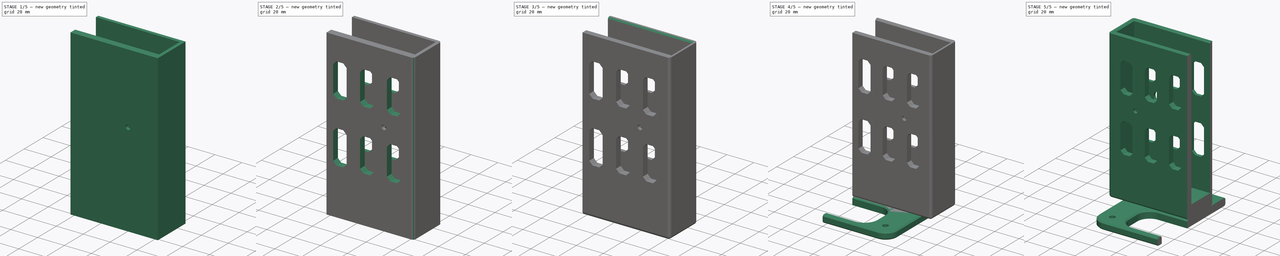
[diagram: build sequence overview — one tinted view per stage of 5, left to right]
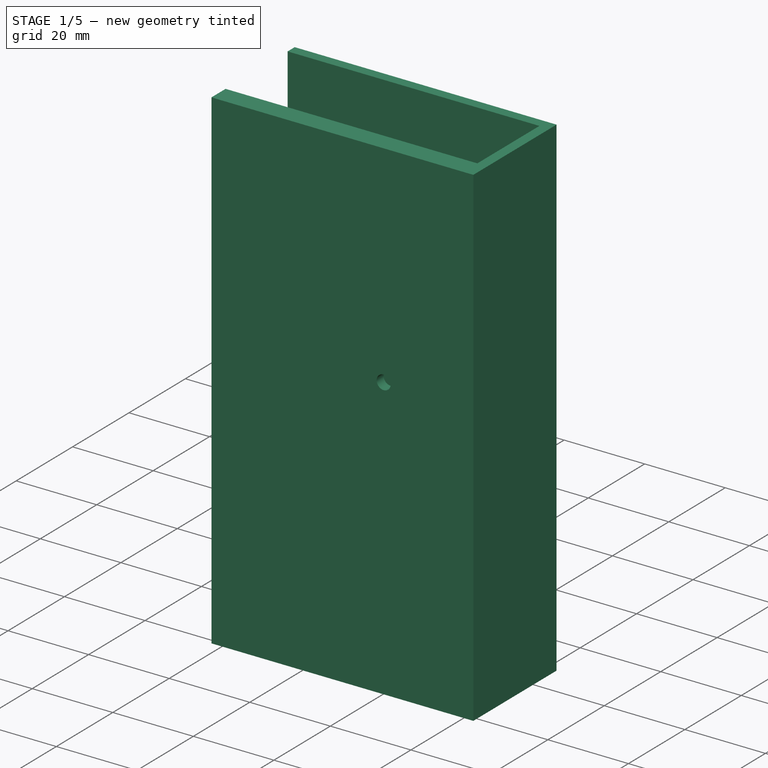
[diagram: stage 1 of 5 — iso view after this stage's code; geometry added in this stage tinted green]
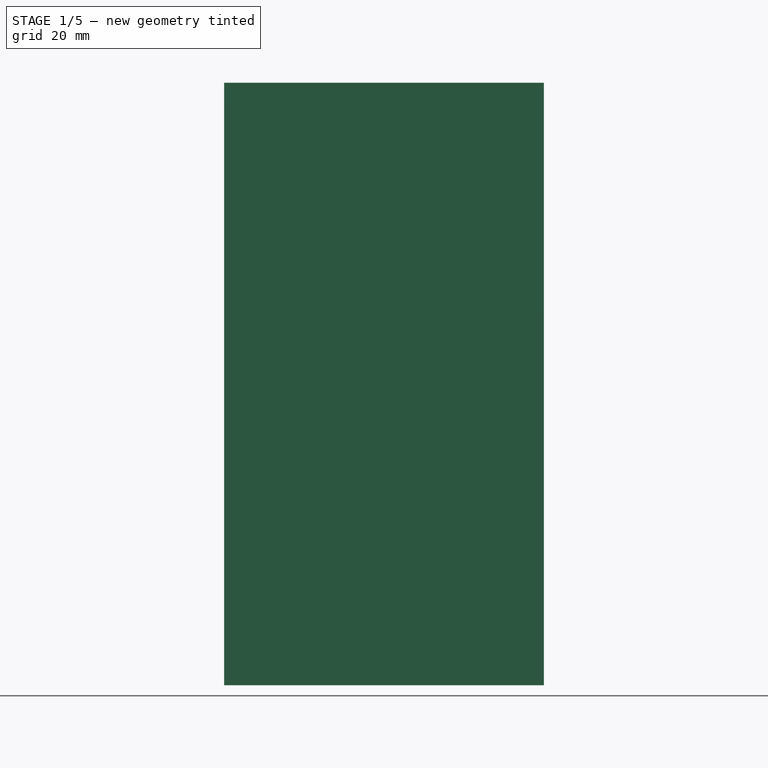
[diagram: stage 1 of 5 — front view after this stage's code; geometry added in this stage tinted green]
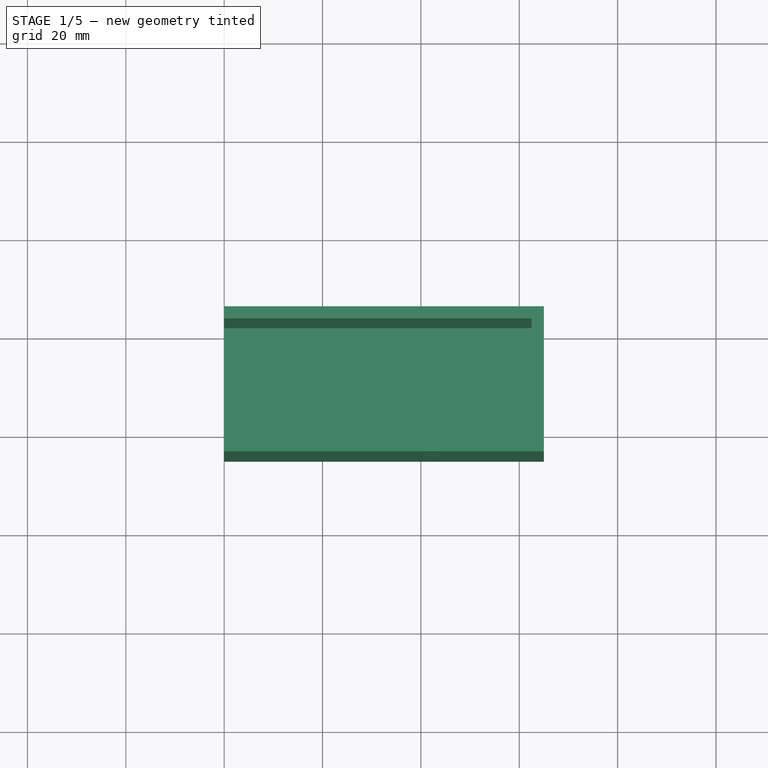
[diagram: stage 1 of 5 — top view after this stage's code; geometry added in this stage tinted green]
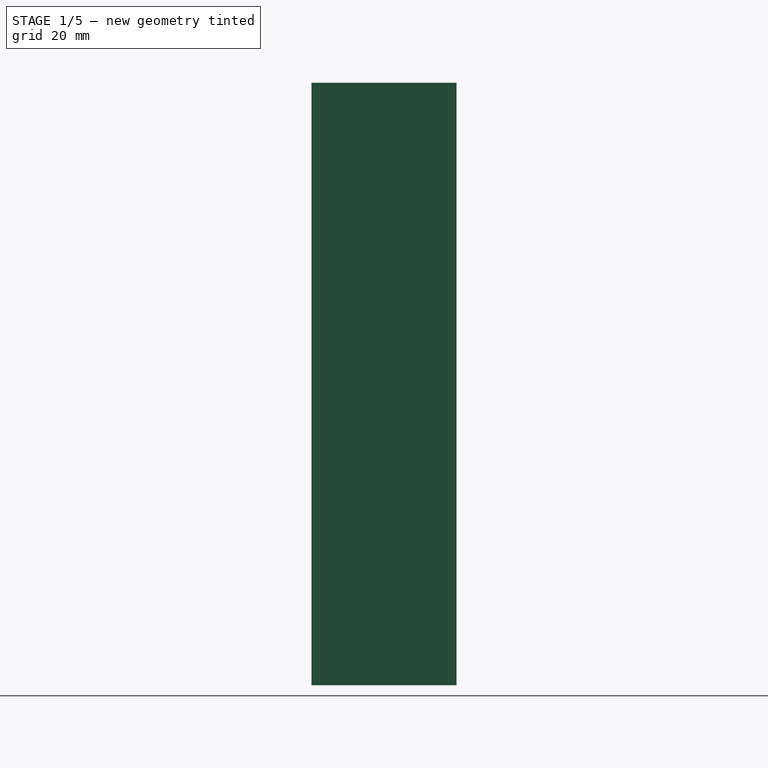
[diagram: stage 1 of 5 — right view after this stage's code; geometry added in this stage tinted green]
FCSTD DOCUMENT  (FreeCAD 0.21R33694 (Git))
Label: NUC_Mount
License: All rights reserved
LicenseURL: http://en.wikipedia.org/wiki/All_rights_reserved
objects: Sketcher::SketchObject×9, PartDesign::Pocket×8, PartDesign::Fillet×3, PartDesign::Pad×2, PartDesign::Chamfer×2, PartDesign::Body×2, PartDesign::FeatureBase×2, Part::Mirroring×2, App::Part×2, PartDesign::LinearPattern×1
note: 46 computed .brp shape members not serialized (recipe doc carries the construction recipe); baked Part::Feature solids carry a one-line shape summary decoded from their .brp

FEATURE [Sketcher::SketchObject] Sketch002
  FullyConstrained = true
  MapMode = 5
  Support = -> [XY_Plane002]
  sketch-geometry (13):
    g0: LineSegment StartX=0 StartY=0 StartZ=0 EndX=62.5 EndY=0 EndZ=0
    g1: LineSegment StartX=62.5 StartY=0 StartZ=0 EndX=62.5 EndY=22 EndZ=0
    g2: LineSegment StartX=62.5 StartY=22 StartZ=0 EndX=0 EndY=22 EndZ=0
    g3: LineSegment StartX=0 StartY=24.5 StartZ=0 EndX=65 EndY=24.5 EndZ=0
    g4: LineSegment StartX=65 StartY=24.5 StartZ=0 EndX=65 EndY=-5 EndZ=0
    g5: LineSegment StartX=62.5 StartY=22 StartZ=0 EndX=62.5 EndY=24.5 EndZ=0
    g6: LineSegment StartX=62.5 StartY=22 StartZ=0 EndX=65 EndY=22 EndZ=0
    g7: LineSegment StartX=62.5 StartY=0 StartZ=0 EndX=62.5 EndY=-5 EndZ=0
    g8: LineSegment StartX=62.5 StartY=0 StartZ=0 EndX=65 EndY=0 EndZ=0
    g9: LineSegment StartX=65 StartY=-5 StartZ=0 EndX=0 EndY=-5 EndZ=0
    g10: LineSegment StartX=0 StartY=24.5 StartZ=0 EndX=0 EndY=22 EndZ=0
    g11: LineSegment StartX=0 StartY=22 StartZ=0 EndX=0 EndY=0 EndZ=0
    g12: LineSegment StartX=0 StartY=0 StartZ=0 EndX=0 EndY=-5 EndZ=0
  constraints (37):
    c: Horizontal(g0)
    c: Coincident(g1,g0)
    c: Vertical(g1)
    c: Coincident(g2,g1)
    c: PointOnObject(g2,g-2)
    c: Horizontal(g2)
    c: PointOnObject(g3,g-2)
    c: Horizontal(g3)
    c: Coincident(g4,g3)
    c: Vertical(g4)
    c: Coincident(g5,g1)
    c: PointOnObject(g5,g3)
    c: Vertical(g5)
    c: Coincident(g6,g1)
    c: PointOnObject(g6,g4)
    c: Horizontal(g6)
    c: Coincident(g7,g0)
    c: Coincident(g8,g0)
    c: PointOnObject(g8,g4)
    c: Horizontal(g8)
    c: Vertical(g7)
    c: Distance(g5) = 2.5
    c: Distance(g6) = 2.5
    c: Distance(g1) = 22
    c: Distance(g2) = 62.5
    c: Coincident(g9,g4)
    c: Horizontal(g9)
    c: PointOnObject(g7,g9)
    c: PointOnObject(g9,g-2)
    c: Distance(g7) = 5
    c: Coincident(g0,g-1)
    c: Coincident(g10,g3)
    c: Coincident(g10,g2)
    c: Coincident(g11,g10)
    c: Coincident(g11,g-1)
    c: Coincident(g12,g11)
    c: Coincident(g12,g9)
FEATURE [PartDesign::Pad] Pad001
  Direction = (1,1,1)
  Length = 122.5
  Length2 = 100
  Profile = -> Sketch002
  Type = 0
FEATURE [Sketcher::SketchObject] Sketch003
  FullyConstrained = true
  MapMode = 5
  Placement = pos=(0,0,122.5) rot=(0,0,1;0rad)
  Support = -> [Pad001]
  sketch-geometry (4):
    g0: LineSegment StartX=0 StartY=0 StartZ=0 EndX=62.5 EndY=0 EndZ=0
    g1: LineSegment StartX=62.5 StartY=0 StartZ=0 EndX=62.5 EndY=22 EndZ=0
    g2: LineSegment StartX=62.5 StartY=22 StartZ=0 EndX=0 EndY=22 EndZ=0
    g3: LineSegment StartX=0 StartY=22 StartZ=0 EndX=0 EndY=0 EndZ=0
  constraints (11):
    c: Coincident(g0,g1)
    c: Coincident(g1,g2)
    c: Coincident(g2,g3)
    c: Coincident(g3,g0)
    c: Horizontal(g0)
    c: Horizontal(g2)
    c: Vertical(g1)
    c: Vertical(g3)
    c: Coincident(g0,g-1)
    c: Distance(g1) = 22
    c: Distance(g2) = 62.5
FEATURE [PartDesign::Pocket] Pocket001
  BaseFeature = -> Pad001
  Direction = (1,1,1)
  Length = 112.5
  Length2 = 100
  Profile = -> Sketch003
  Type = 0
FEATURE [Sketcher::SketchObject] Sketch004
  FullyConstrained = true
  MapMode = 5
  Placement = pos=(0,-5,0) rot=(1,0,0;1.5708rad)
  Support = -> [Pocket001]
  sketch-geometry (3):
    g0: LineSegment StartX=0 StartY=0 StartZ=0 EndX=0 EndY=70 EndZ=0
    g1: LineSegment StartX=0 StartY=70 StartZ=0 EndX=42.75 EndY=70 EndZ=0
    g2: Circle CenterX=42.75 CenterY=70 CenterZ=0 NormalX=0 NormalY=0 NormalZ=1 AngleXU=0 Radius=1.75
  constraints (8):
    c: Coincident(g0,g-1)
    c: PointOnObject(g0,g-2)
    c: Coincident(g1,g0)
    c: Horizontal(g1)
    c: Coincident(g2,g1)
    c: Distance(g0) = 70
    c: Distance(g1) = 42.75
    c: Radius(g2) = 1.75
FEATURE [Sketcher::SketchObject] Sketch005
  FullyConstrained = true
  MapMode = 5
  Placement = pos=(0,0,0) rot=(0,0.707107,0.707107;3.14159rad)
  Support = -> [Pocket001]
  sketch-geometry (3):
    g0: LineSegment StartX=0 StartY=0 StartZ=0 EndX=0 EndY=70 EndZ=0
    g1: LineSegment StartX=0 StartY=70 StartZ=0 EndX=-42.75 EndY=70 EndZ=0
    g2: Circle CenterX=-42.75 CenterY=70 CenterZ=0 NormalX=0 NormalY=0 NormalZ=1 AngleXU=0 Radius=4
  constraints (8):
    c: Coincident(g0,g-1)
    c: Vertical(g0)
    c: Coincident(g1,g0)
    c: Horizontal(g1)
    c: Coincident(g2,g1)
    c: Distance(g1) = 42.75
    c: Distance(g0) = 70
    c: Radius(g2) = 4
FEATURE [PartDesign::Pocket] Pocket002
  BaseFeature = -> Pocket001
  Direction = (1,1,1)
  Length = 5
  Length2 = 100
  Profile = -> Sketch004
  Type = 2
FEATURE [PartDesign::Pocket] Pocket003
  BaseFeature = -> Pocket002
  Direction = (1,1,1)
  Length = 2.5
  Length2 = 100
  Profile = -> Sketch005
  Type = 0
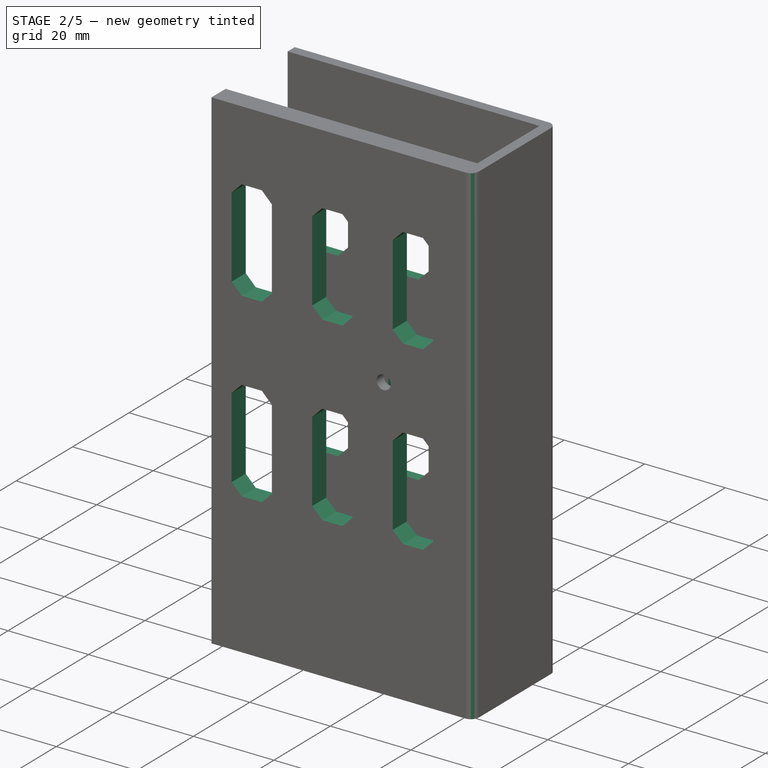
[diagram: stage 2 of 5 — iso view after this stage's code; geometry added in this stage tinted green]
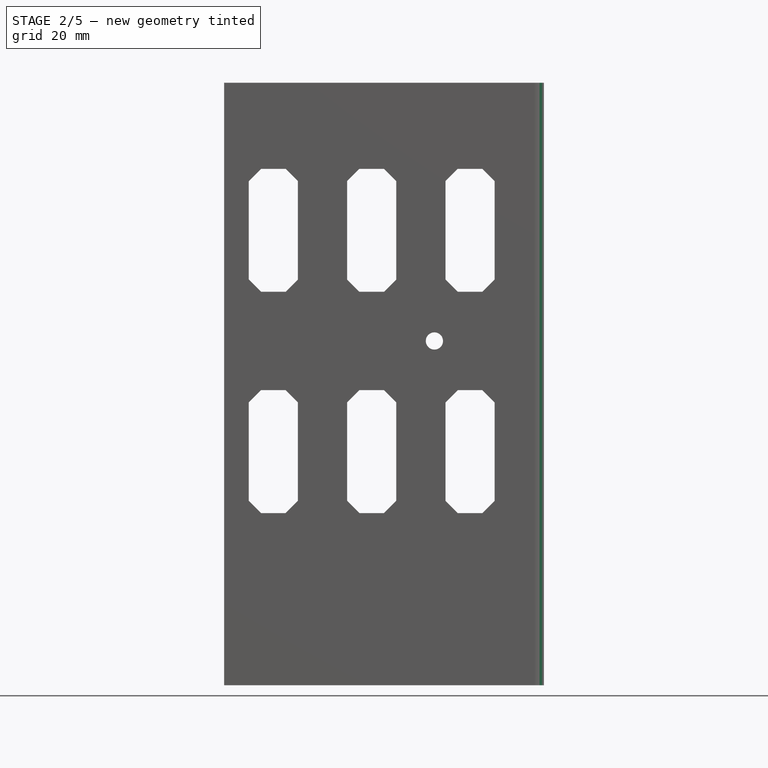
[diagram: stage 2 of 5 — front view after this stage's code; geometry added in this stage tinted green]
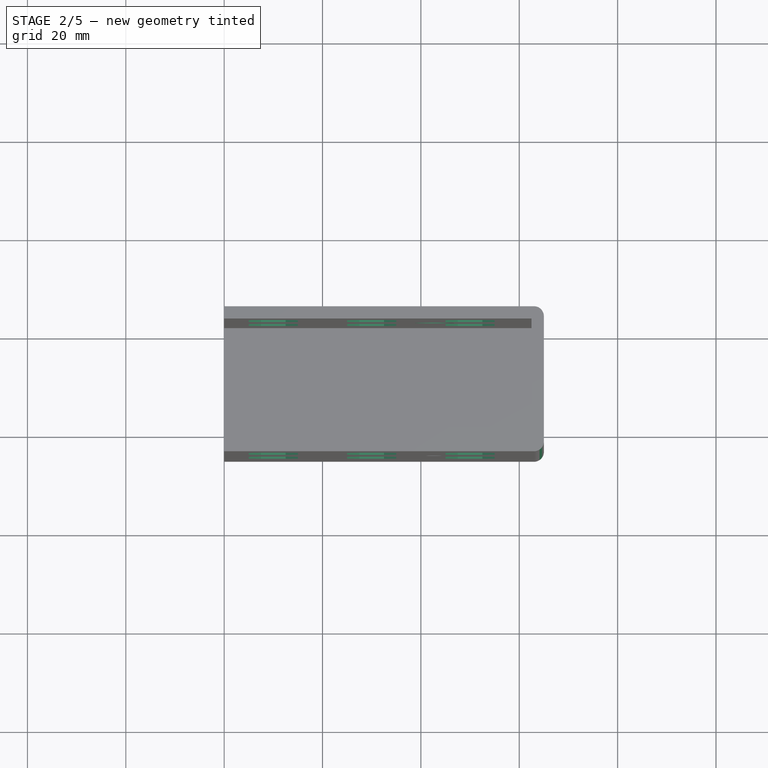
[diagram: stage 2 of 5 — top view after this stage's code; geometry added in this stage tinted green]
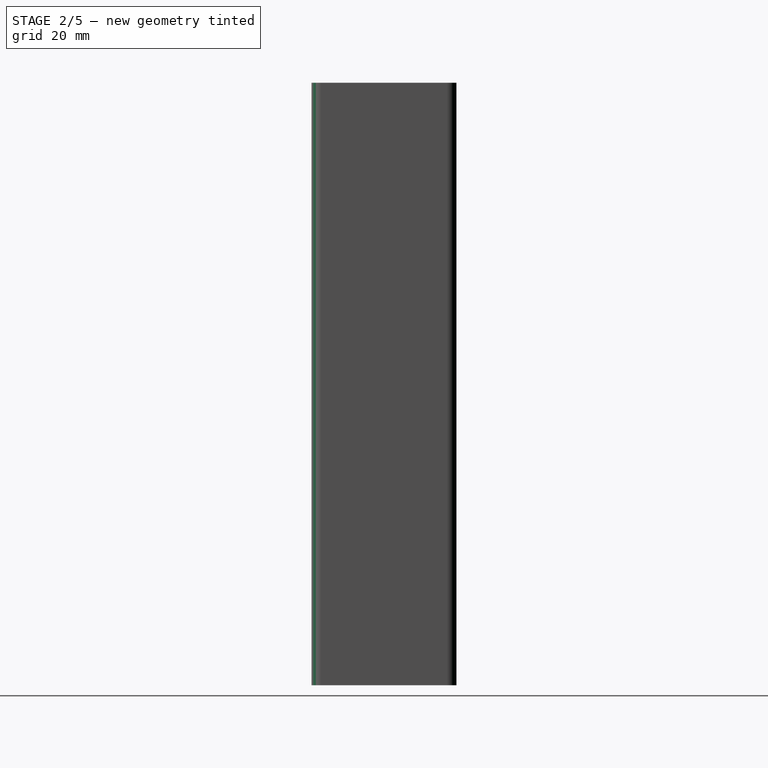
[diagram: stage 2 of 5 — right view after this stage's code; geometry added in this stage tinted green]
FEATURE [PartDesign::Pocket] Pocket004
  BaseFeature = -> Pocket003
  Direction = (1,1,1)
  Length = 5
  Length2 = 100
  Profile = -> Sketch005
  Reversed = true
  Type = 1
FEATURE [Sketcher::SketchObject] Sketch006
  FullyConstrained = true
  MapMode = 5
  Placement = pos=(0,-5,0) rot=(1,0,0;1.5708rad)
  Support = -> [Pocket004]
  sketch-geometry (26):
    g0: LineSegment StartX=0 StartY=0 StartZ=0 EndX=0 EndY=70 EndZ=0
    g1: LineSegment StartX=0 StartY=70 StartZ=0 EndX=65 EndY=70 EndZ=0
    g2: LineSegment StartX=5 StartY=102.5 StartZ=0 EndX=5 EndY=82.5 EndZ=0
    g3: LineSegment StartX=15 StartY=102.5 StartZ=0 EndX=15 EndY=82.5 EndZ=0
    g4: LineSegment StartX=5 StartY=102.5 StartZ=0 EndX=7.5 EndY=105 EndZ=0
    g5: LineSegment StartX=5 StartY=102.5 StartZ=0 EndX=15 EndY=102.5 EndZ=0
    g6: LineSegment StartX=5 StartY=82.5 StartZ=0 EndX=15 EndY=82.5 EndZ=0
    g7: LineSegment StartX=5 StartY=37.5 StartZ=0 EndX=15 EndY=37.5 EndZ=0
    g8: LineSegment StartX=5 StartY=57.5 StartZ=0 EndX=15 EndY=57.5 EndZ=0
    g9: LineSegment StartX=5 StartY=57.5 StartZ=0 EndX=5 EndY=37.5 EndZ=0
    g10: LineSegment StartX=5 StartY=37.5 StartZ=0 EndX=7.5 EndY=35 EndZ=0
    g11: LineSegment StartX=7.5 StartY=35 StartZ=0 EndX=12.5 EndY=35 EndZ=0
    g12: LineSegment StartX=12.5 StartY=35 StartZ=0 EndX=15 EndY=37.5 EndZ=0
    g13: LineSegment StartX=15 StartY=37.5 StartZ=0 EndX=15 EndY=57.5 EndZ=0
    g14: LineSegment StartX=15 StartY=57.5 StartZ=0 EndX=12.5 EndY=60 EndZ=0
    g15: LineSegment StartX=12.5 StartY=60 StartZ=0 EndX=7.5 EndY=60 EndZ=0
    g16: LineSegment StartX=7.5 StartY=60 StartZ=0 EndX=5 EndY=57.5 EndZ=0
    g17: LineSegment StartX=15 StartY=82.5 StartZ=0 EndX=12.5 EndY=80 EndZ=0
    g18: LineSegment StartX=12.5 StartY=80 StartZ=0 EndX=7.5 EndY=80 EndZ=0
    g19: LineSegment StartX=7.5 StartY=80 StartZ=0 EndX=5 EndY=82.5 EndZ=0
    g20: LineSegment StartX=7.5 StartY=105 StartZ=0 EndX=12.5 EndY=105 EndZ=0
    g21: LineSegment StartX=12.5 StartY=105 StartZ=0 EndX=15 EndY=102.5 EndZ=0
    g22: LineSegment StartX=5 StartY=82.5 StartZ=0 EndX=0 EndY=82.5 EndZ=0
    g23: LineSegment StartX=7.5 StartY=80 StartZ=0 EndX=7.5 EndY=70 EndZ=0
    g24: LineSegment StartX=5 StartY=57.5 StartZ=0 EndX=0 EndY=57.5 EndZ=0
    g25: LineSegment StartX=7.5 StartY=60 StartZ=0 EndX=7.5 EndY=70 EndZ=0
  constraints (74):
    c: Coincident(g0,g-1)
    c: PointOnObject(g0,g-2)
    c: Coincident(g1,g0)
    c: Horizontal(g1)
    c: Distance(g0) = 70
    c: Distance(g1) = 65
    c: Vertical(g2)
    c: Vertical(g3)
    c: Coincident(g4,g2)
    c: Coincident(g5,g2)
    c: Coincident(g5,g3)
    c: Coincident(g6,g2)
    c: Horizontal(g8)
    c: Coincident(g9,g7)
    c: Vertical(g9)
    c: Coincident(g10,g9)
    c: Coincident(g11,g10)
    c: Horizontal(g11)
    c: Coincident(g12,g11)
    c: Coincident(g12,g7)
    c: Coincident(g13,g12)
    c: Coincident(g13,g8)
    c: Vertical(g13)
    c: Coincident(g14,g13)
    c: Coincident(g15,g14)
    c: Coincident(g16,g15)
    c: Coincident(g16,g8)
    c: Coincident(g9,g16)
    c: Coincident(g17,g6)
    c: Coincident(g18,g17)
    c: Coincident(g19,g18)
    c: Coincident(g19,g2)
    c: Coincident(g20,g4)
    c: Horizontal(g20)
    c: Coincident(g21,g20)
    c: Coincident(g21,g3)
    c: Horizontal(g5)
    c: Equal(g4,g21)
    c: Angle(g5,g4) = 0.785398
    c: Angle(g19,g6) = 0.785398
    c: Coincident(g17,g3)
    c: Horizontal(g18)
    c: Equal(g19,g17)
    c: Horizontal(g6)
    c: Equal(g20,g18)
    c: Distance(g5) = 10
    c: Distance(g3) = 20
    c: Distance(g20) = 5
    c: Coincident(g22,g2)
    c: PointOnObject(g22,g-2)
    c: Horizontal(g22)
    c: Distance(g22) = 5
    c: Coincident(g23,g18)
    c: PointOnObject(g23,g1)
    c: Vertical(g23)
    c: Distance(g23) = 10
    c: Coincident(g24,g9)
    c: PointOnObject(g24,g0)
    c: Horizontal(g24)
    c: Coincident(g25,g15)
    c: PointOnObject(g25,g1)
    c: Vertical(g25)
    c: Distance(g24) = 5
    c: Distance(g25) = 10
    c: Horizontal(g15)
    c: Horizontal(g7)
    c: Equal(g16,g14)
    c: Angle(g8,g16) = 0.785398
    c: Equal(g18,g15)
    c: Equal(g16,g19)
    c: Equal(g15,g11)
    c: Equal(g12,g14)
    c: Equal(g12,g10)
    c: Distance(g13) = 20
FEATURE [PartDesign::Pocket] Pocket005
  BaseFeature = -> Pocket004
  Direction = (1,1,1)
  Length = 5
  Length2 = 100
  Profile = -> Sketch006
  Type = 1
FEATURE [PartDesign::LinearPattern] LinearPattern
  BaseFeature = -> Pocket005
  Direction = -> X_Axis002
  Length = 40
  Occurrences = 3
  Originals = -> [Pocket005]
FEATURE [PartDesign::Fillet] Fillet001
  Base = -> LinearPattern [Edge68,Edge4]
  BaseFeature = -> LinearPattern
  Radius = 2
  SupportTransform = false
  UseAllEdges = false
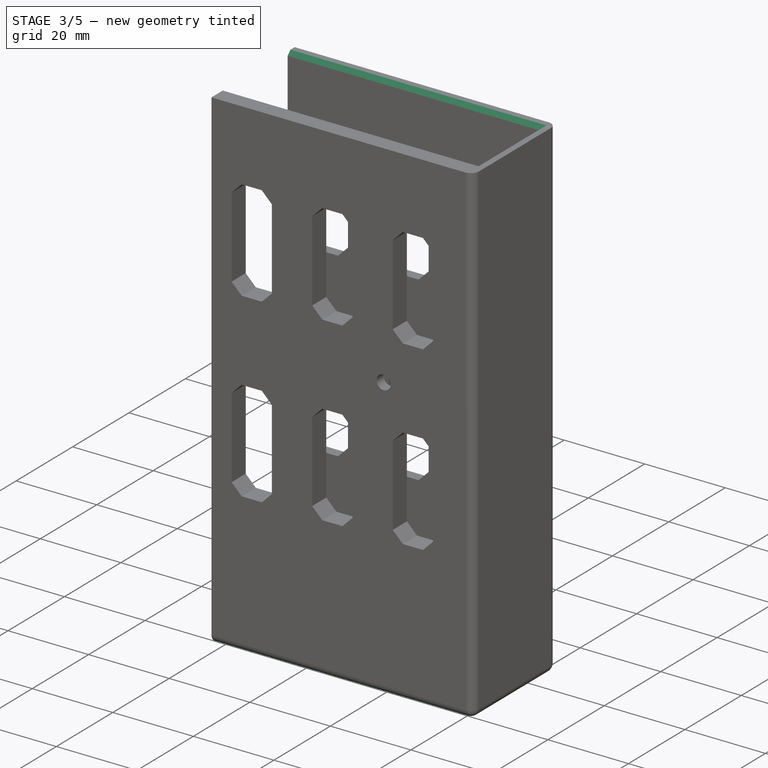
[diagram: stage 3 of 5 — iso view after this stage's code; geometry added in this stage tinted green]
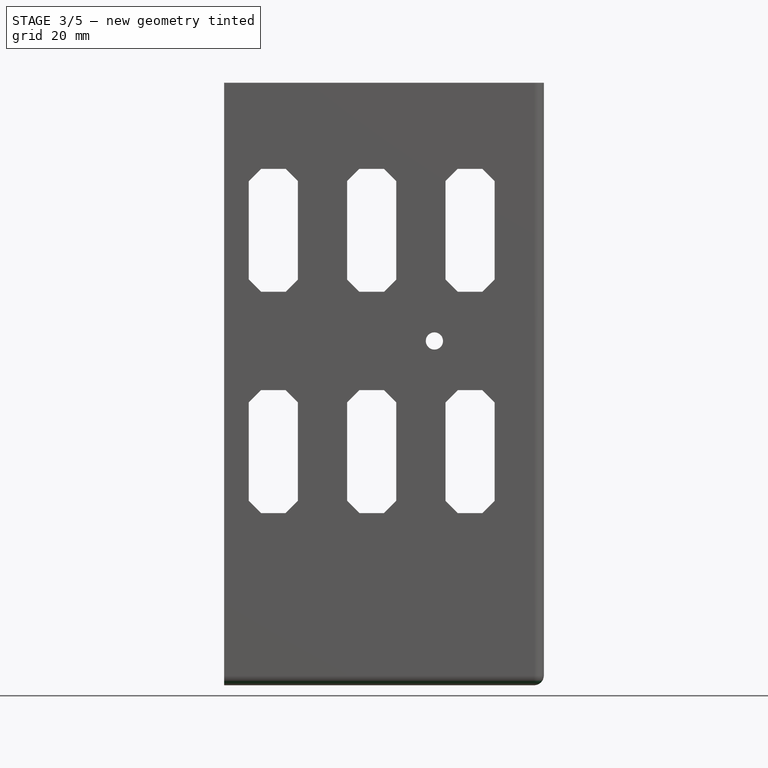
[diagram: stage 3 of 5 — front view after this stage's code; geometry added in this stage tinted green]
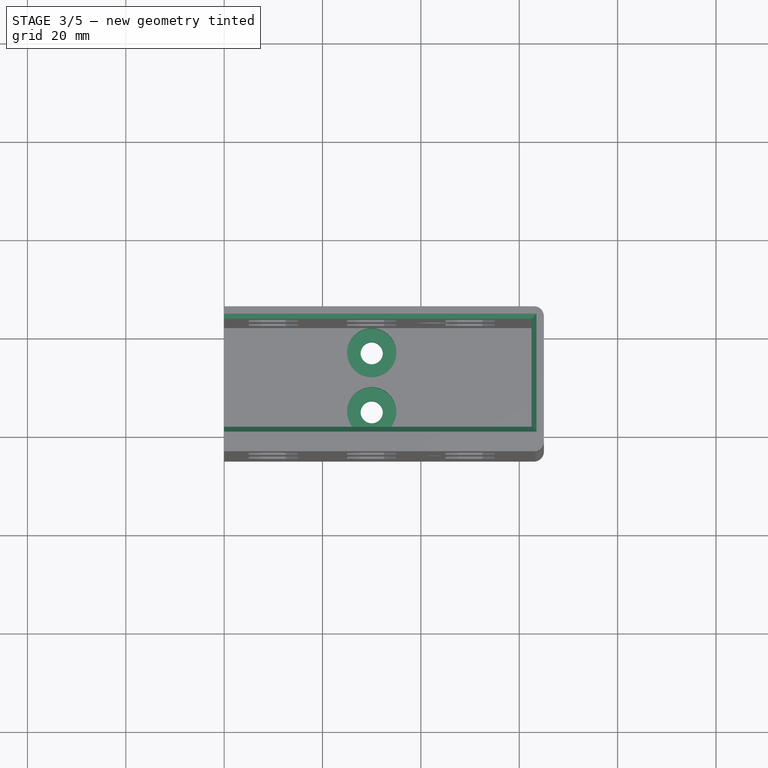
[diagram: stage 3 of 5 — top view after this stage's code; geometry added in this stage tinted green]
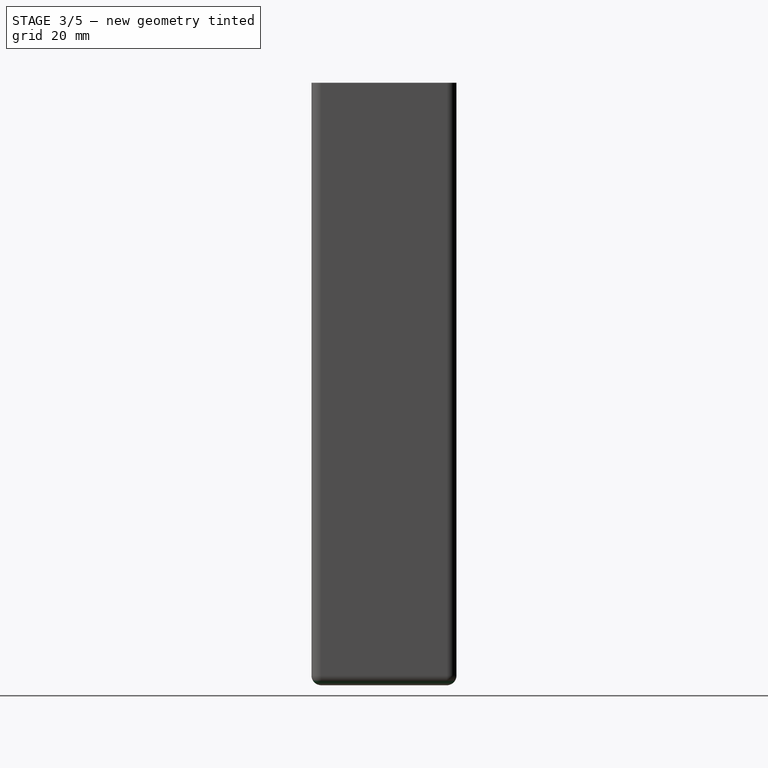
[diagram: stage 3 of 5 — right view after this stage's code; geometry added in this stage tinted green]
FEATURE [App::Part] Part  label="NUC_Mount_Bottom"
  Group = -> [Body,Clone,Part__Mirroring]
  Origin = -> Origin
FEATURE [Sketcher::SketchObject] Sketch008
  FullyConstrained = true
  MapMode = 5
  Placement = pos=(0,0,10) rot=(0,0,1;0rad)
  Support = -> [Fillet001]
  sketch-geometry (7):
    g0: LineSegment StartX=0 StartY=0 StartZ=0 EndX=0 EndY=5 EndZ=0
    g1: LineSegment StartX=0 StartY=22 StartZ=0 EndX=0 EndY=17 EndZ=0
    g2: LineSegment StartX=0 StartY=17 StartZ=0 EndX=0 EndY=5 EndZ=0
    g3: LineSegment StartX=0 StartY=17 StartZ=0 EndX=30 EndY=17 EndZ=0
    g4: LineSegment StartX=0 StartY=5 StartZ=0 EndX=30 EndY=5 EndZ=0
    g5: Circle CenterX=30 CenterY=17 CenterZ=0 NormalX=0 NormalY=0 NormalZ=1 AngleXU=0 Radius=2.25
    g6: Circle CenterX=30 CenterY=5 CenterZ=0 NormalX=0 NormalY=0 NormalZ=1 AngleXU=0 Radius=2.25
  constraints (19):
    c: Coincident(g0,g-1)
    c: PointOnObject(g0,g-2)
    c: PointOnObject(g1,g-2)
    c: PointOnObject(g1,g-2)
    c: Coincident(g2,g1)
    c: Coincident(g2,g0)
    c: Coincident(g3,g1)
    c: Horizontal(g3)
    c: Coincident(g4,g0)
    c: Horizontal(g4)
    c: Equal(g1,g0)
    c: Equal(g4,g3)
    c: DistanceY(g-1,g1) = 22
    c: Distance(g1) = 5
    c: Coincident(g5,g3)
    c: Coincident(g6,g4)
    c: Equal(g5,g6)
    c: Distance(g3) = 30
    c: Radius(g5) = 2.25
FEATURE [PartDesign::Pocket] Pocket006
  BaseFeature = -> Fillet001
  Direction = (1,1,1)
  Length = 5
  Length2 = 100
  Profile = -> Sketch008
  Type = 1
FEATURE [Sketcher::SketchObject] Sketch009
  FullyConstrained = true
  MapMode = 5
  Placement = pos=(0,0,10) rot=(0,0,1;0rad)
  Support = -> [Pocket006]
  sketch-geometry (7):
    g0: LineSegment StartX=0 StartY=0 StartZ=0 EndX=0 EndY=5 EndZ=0
    g1: LineSegment StartX=0 StartY=5 StartZ=0 EndX=0 EndY=17 EndZ=0
    g2: LineSegment StartX=0 StartY=17 StartZ=0 EndX=0 EndY=22 EndZ=0
    g3: LineSegment StartX=0 StartY=17 StartZ=0 EndX=30 EndY=17 EndZ=0
    g4: LineSegment StartX=0 StartY=5 StartZ=0 EndX=30 EndY=5 EndZ=0
    g5: Circle CenterX=30 CenterY=17 CenterZ=0 NormalX=0 NormalY=0 NormalZ=1 AngleXU=0 Radius=5
    g6: Circle CenterX=30 CenterY=5 CenterZ=0 NormalX=0 NormalY=0 NormalZ=1 AngleXU=0 Radius=5
  constraints (19):
    c: Coincident(g0,g-1)
    c: PointOnObject(g0,g-2)
    c: Coincident(g1,g0)
    c: PointOnObject(g1,g-2)
    c: PointOnObject(g2,g-2)
    c: Coincident(g3,g1)
    c: Horizontal(g3)
    c: Coincident(g4,g0)
    c: Horizontal(g4)
    c: Coincident(g2,g1)
    c: DistanceY(g-1,g2) = 22
    c: Distance(g3) = 30
    c: Equal(g3,g4)
    c: Equal(g2,g0)
    c: Coincident(g5,g3)
    c: Coincident(g6,g4)
    c: Equal(g5,g6)
    c: Distance(g2) = 5
    c: Radius(g5) = 5
FEATURE [PartDesign::Pocket] Pocket007
  BaseFeature = -> Pocket006
  Direction = (1,1,1)
  Length = 5
  Length2 = 100
  Profile = -> Sketch009
  Type = 0
FEATURE [PartDesign::Chamfer] Chamfer001
  Angle = 45
  Base = -> Pocket007 [Edge73,Edge72,Edge74]
  BaseFeature = -> Pocket007
  ChamferType = 0
  FlipDirection = false
  Size = 1
  Size2 = 1
  SupportTransform = false
  UseAllEdges = false
FEATURE [PartDesign::Fillet] Fillet002
  Base = -> Chamfer001 [Edge75]
  BaseFeature = -> Chamfer001
  Radius = 2
  SupportTransform = false
  UseAllEdges = false
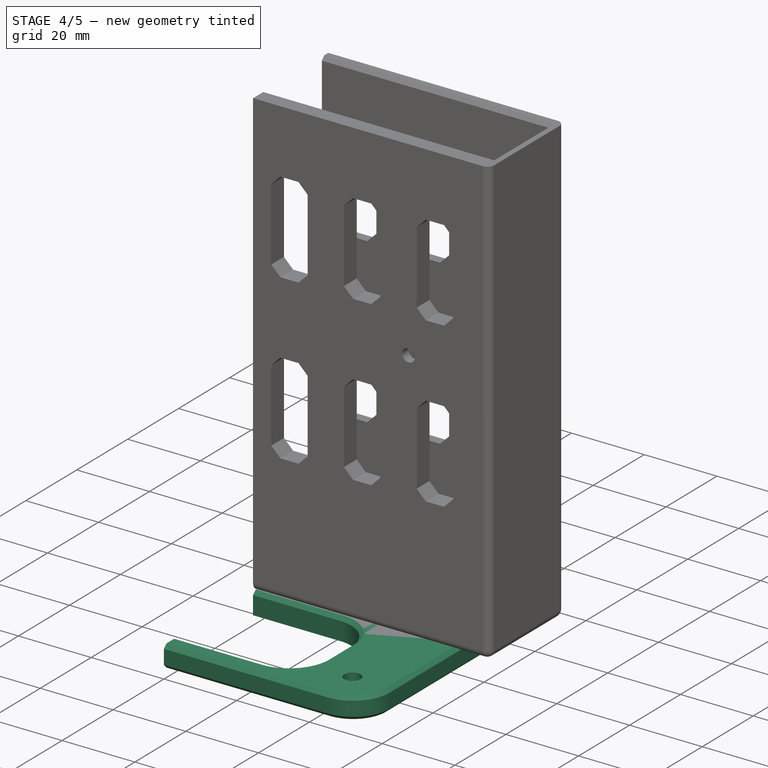
[diagram: stage 4 of 5 — iso view after this stage's code; geometry added in this stage tinted green]
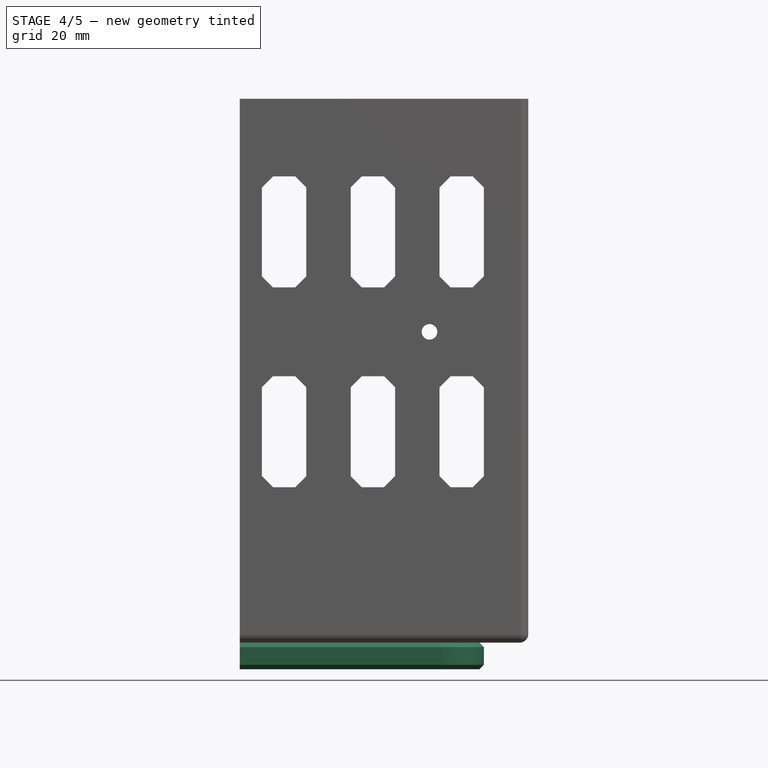
[diagram: stage 4 of 5 — front view after this stage's code; geometry added in this stage tinted green]
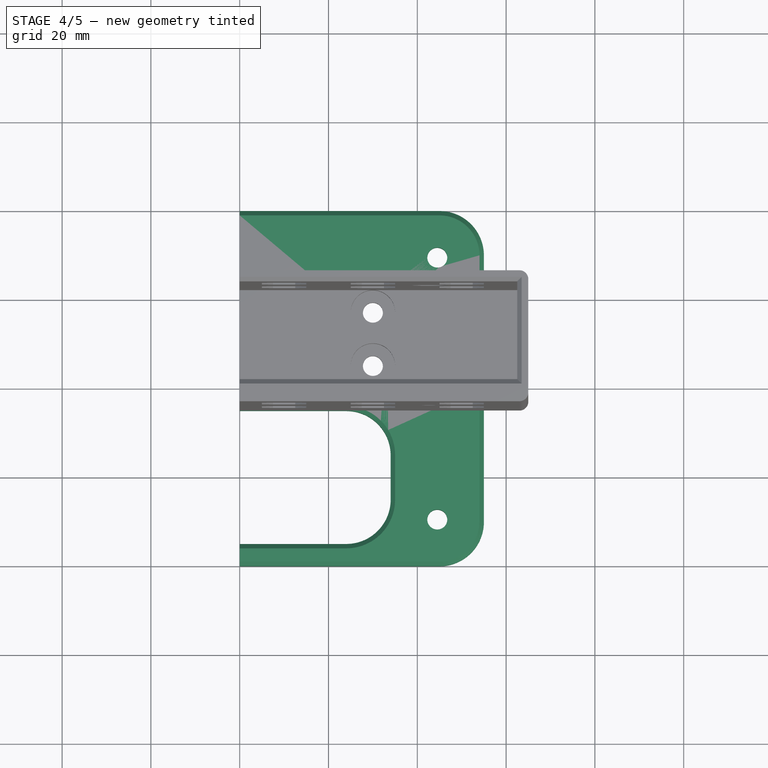
[diagram: stage 4 of 5 — top view after this stage's code; geometry added in this stage tinted green]
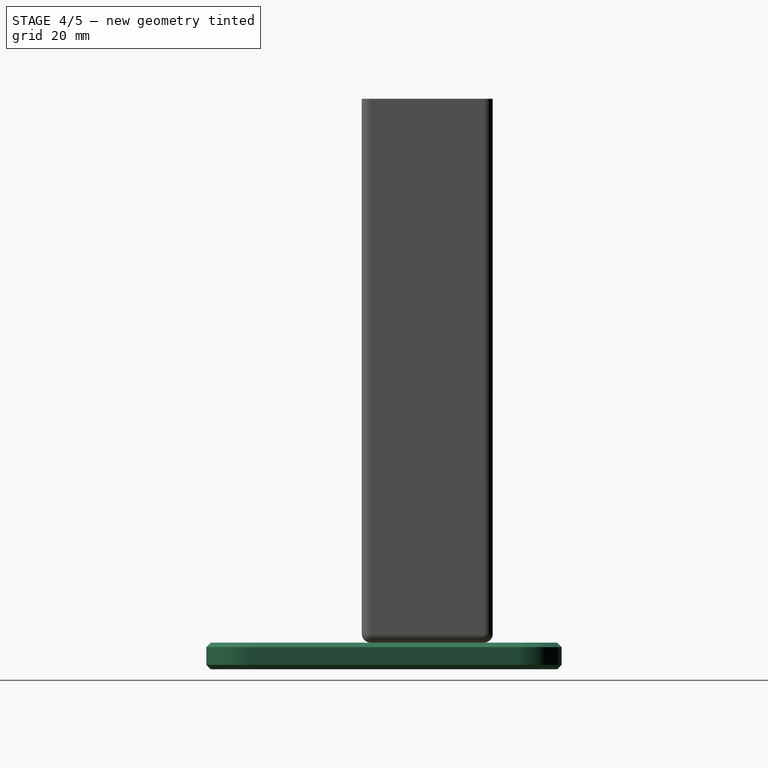
[diagram: stage 4 of 5 — right view after this stage's code; geometry added in this stage tinted green]
FEATURE [Sketcher::SketchObject] Sketch
  FullyConstrained = true
  MapMode = 5
  Support = -> [XY_Plane001]
  sketch-geometry (17):
    g0: LineSegment StartX=0 StartY=-40 StartZ=0 EndX=55 EndY=-40 EndZ=0
    g1: LineSegment StartX=55 StartY=40 StartZ=0 EndX=0 EndY=40 EndZ=0
    g2: LineSegment StartX=55 StartY=40 StartZ=0 EndX=55 EndY=0 EndZ=0
    g3: LineSegment StartX=55 StartY=0 StartZ=0 EndX=55 EndY=-40 EndZ=0
    g4: Circle CenterX=44.5 CenterY=29.5 CenterZ=0 NormalX=0 NormalY=0 NormalZ=1 AngleXU=0 Radius=2.25
    g5: LineSegment StartX=44.5 StartY=-29.5 StartZ=0 EndX=55 EndY=-29.5 EndZ=0
    g6: Circle CenterX=44.5 CenterY=-29.5 CenterZ=0 NormalX=0 NormalY=0 NormalZ=1 AngleXU=0 Radius=2.25
    g7: LineSegment StartX=0 StartY=40 StartZ=0 EndX=0 EndY=-5 EndZ=0
    g8: LineSegment StartX=0 StartY=-40 StartZ=0 EndX=0 EndY=-35 EndZ=0
    g9: LineSegment StartX=0 StartY=-5 StartZ=0 EndX=34 EndY=-5 EndZ=0
    g10: LineSegment StartX=34 StartY=-5 StartZ=0 EndX=34 EndY=-35 EndZ=0
    g11: LineSegment StartX=34 StartY=-35 StartZ=0 EndX=0 EndY=-35 EndZ=0
    g12: LineSegment StartX=44.5 StartY=-29.5 StartZ=0 EndX=34 EndY=-29.5 EndZ=0
    g13: LineSegment StartX=44.5 StartY=29.5 StartZ=0 EndX=44.5 EndY=-29.5 EndZ=0
    g14: LineSegment StartX=44.5 StartY=29.5 StartZ=0 EndX=44.5 EndY=40 EndZ=0
    g15: LineSegment StartX=44.5 StartY=-29.5 StartZ=0 EndX=44.5 EndY=-40 EndZ=0
    g16: LineSegment StartX=44.5 StartY=29.5 StartZ=0 EndX=0 EndY=29.5 EndZ=0
  constraints (50):
    c: PointOnObject(g1,g-2)
    c: PointOnObject(g0,g-2)
    c: Horizontal(g0)
    c: Horizontal(g1)
    c: Distance(g1) = 55
    c: Coincident(g2,g1)
    c: PointOnObject(g2,g-1)
    c: Vertical(g2)
    c: Coincident(g3,g2)
    c: Coincident(g3,g0)
    c: Vertical(g3)
    c: Equal(g2,g3)
    c: Radius(g4) = 2.25
    c: Horizontal(g5)
    c: Radius(g6) = 2.25
    c: Coincident(g7,g1)
    c: PointOnObject(g7,g-2)
    c: Coincident(g8,g0)
    c: PointOnObject(g8,g-2)
    c: DistanceY(g7,g-1) = 5
    c: DistanceY(g0,g8) = 5
    c: Coincident(g9,g7)
    c: Horizontal(g9)
    c: Coincident(g10,g9)
    c: Vertical(g10)
    c: Coincident(g11,g10)
    c: Coincident(g11,g8)
    c: Horizontal(g11)
    c: Coincident(g12,g6)
    c: PointOnObject(g12,g10)
    c: Horizontal(g12)
    c: Equal(g5,g12)
    c: DistanceY(g0,g1) = 80
    c: Coincident(g13,g4)
    c: Coincident(g13,g6)
    c: Vertical(g13)
    c: Distance(g13) = 59
    c: Coincident(g14,g4)
    c: PointOnObject(g14,g1)
    c: Vertical(g14)
    c: Coincident(g15,g6)
    c: PointOnObject(g15,g0)
    c: Vertical(g15)
    c: Coincident(g5,g6)
    c: Equal(g14,g15)
    c: Coincident(g16,g4)
    c: PointOnObject(g16,g7)
    c: Horizontal(g16)
    c: Distance(g16) = 44.5
    c: PointOnObject(g5,g3)
FEATURE [PartDesign::Pad] Pad
  Direction = (1,1,1)
  Length = 6
  Length2 = 100
  Profile = -> Sketch
  Reversed = true
  Type = 0
FEATURE [PartDesign::Fillet] Fillet
  Base = -> Pad [Edge2,Edge8,Edge17,Edge20]
  BaseFeature = -> Pad
  Radius = 10
  SupportTransform = false
  UseAllEdges = false
FEATURE [Sketcher::SketchObject] Sketch007
  FullyConstrained = true
  MapMode = 5
  Support = -> [Fillet]
  sketch-geometry (7):
    g0: LineSegment StartX=0 StartY=-1e-16 StartZ=0 EndX=0 EndY=22 EndZ=0
    g1: LineSegment StartX=30 StartY=22 StartZ=0 EndX=30 EndY=17 EndZ=0
    g2: LineSegment StartX=30 StartY=0 StartZ=0 EndX=30 EndY=5 EndZ=0
    g3: LineSegment StartX=30 StartY=17 StartZ=0 EndX=30 EndY=5 EndZ=0
    g4: Circle CenterX=30 CenterY=17 CenterZ=0 NormalX=0 NormalY=0 NormalZ=1 AngleXU=0 Radius=2.85
    g5: Circle CenterX=30 CenterY=5 CenterZ=0 NormalX=0 NormalY=0 NormalZ=1 AngleXU=0 Radius=2.85
    g6: LineSegment StartX=30 StartY=22 StartZ=0 EndX=0 EndY=22 EndZ=0
  constraints (19):
    c: Coincident(g0,g-1)
    c: PointOnObject(g0,g-2)
    c: Distance(g0) = 22
    c: Vertical(g1)
    c: Vertical(g2)
    c: Coincident(g3,g1)
    c: Coincident(g3,g2)
    c: Vertical(g3)
    c: Coincident(g4,g1)
    c: Coincident(g5,g2)
    c: Distance(g2) = 5
    c: Equal(g2,g1)
    c: Radius(g4) = 2.85
    c: Equal(g4,g5)
    c: Coincident(g6,g1)
    c: Coincident(g6,g0)
    c: Horizontal(g6)
    c: Distance(g6) = 30
    c: PointOnObject(g2,g-1)
FEATURE [PartDesign::Pocket] Pocket
  BaseFeature = -> Fillet
  Direction = (1,1,1)
  Length = 5
  Length2 = 100
  Profile = -> Sketch007
  Type = 1
FEATURE [PartDesign::Chamfer] Chamfer
  Angle = 45
  Base = -> Pocket [Edge7,Edge12,Edge25,Edge18,Edge19]
  BaseFeature = -> Pocket
  ChamferType = 0
  FlipDirection = false
  Size = 1
  Size2 = 1
  SupportTransform = false
  UseAllEdges = false
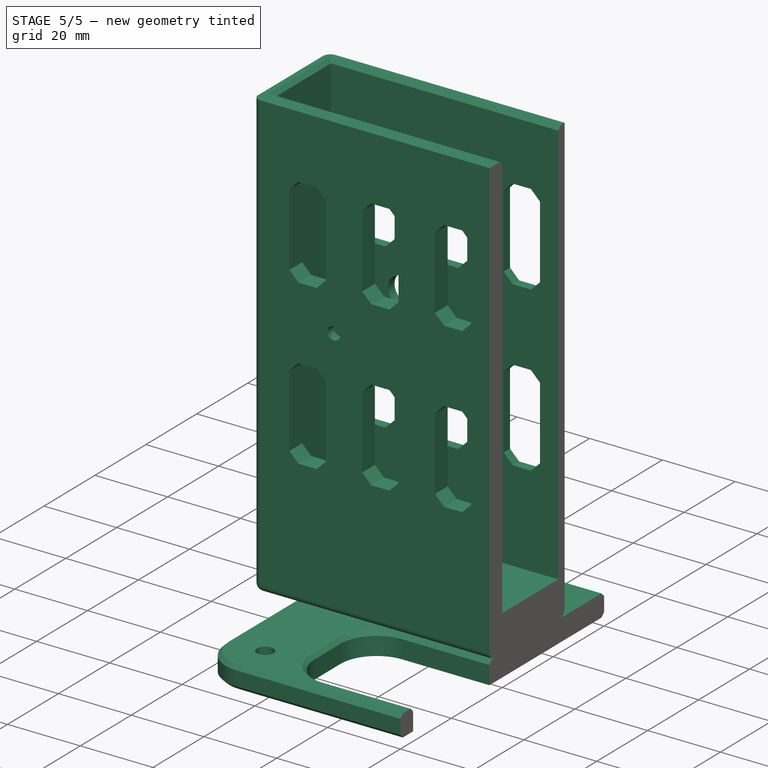
[diagram: stage 5 of 5 — iso view after this stage's code; geometry added in this stage tinted green]
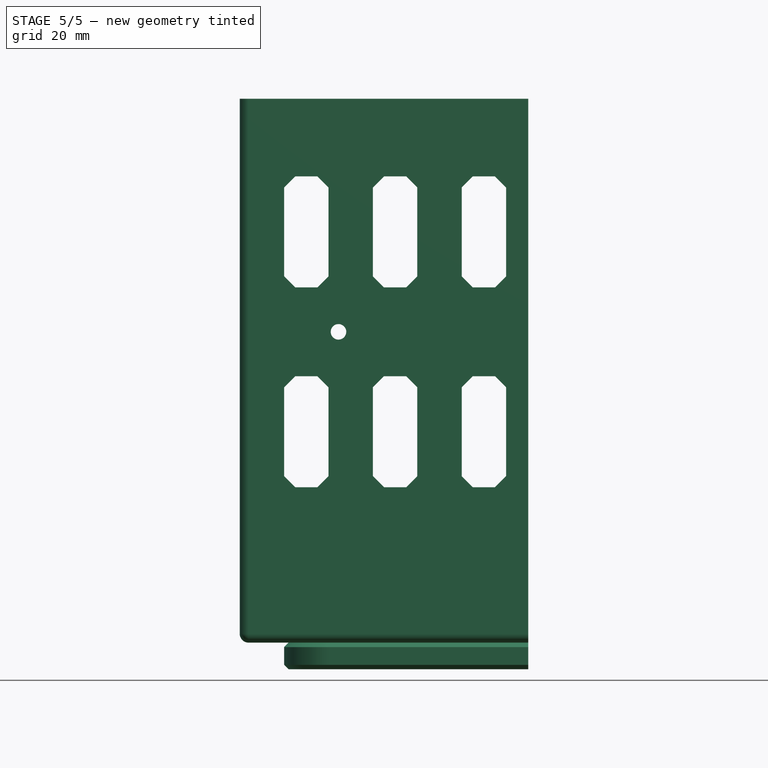
[diagram: stage 5 of 5 — front view after this stage's code; geometry added in this stage tinted green]
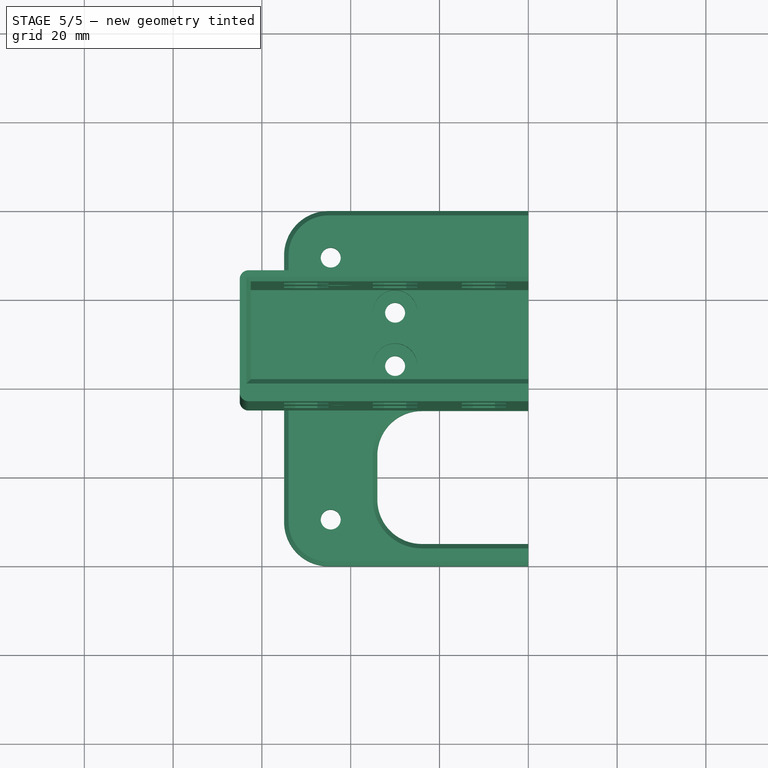
[diagram: stage 5 of 5 — top view after this stage's code; geometry added in this stage tinted green]
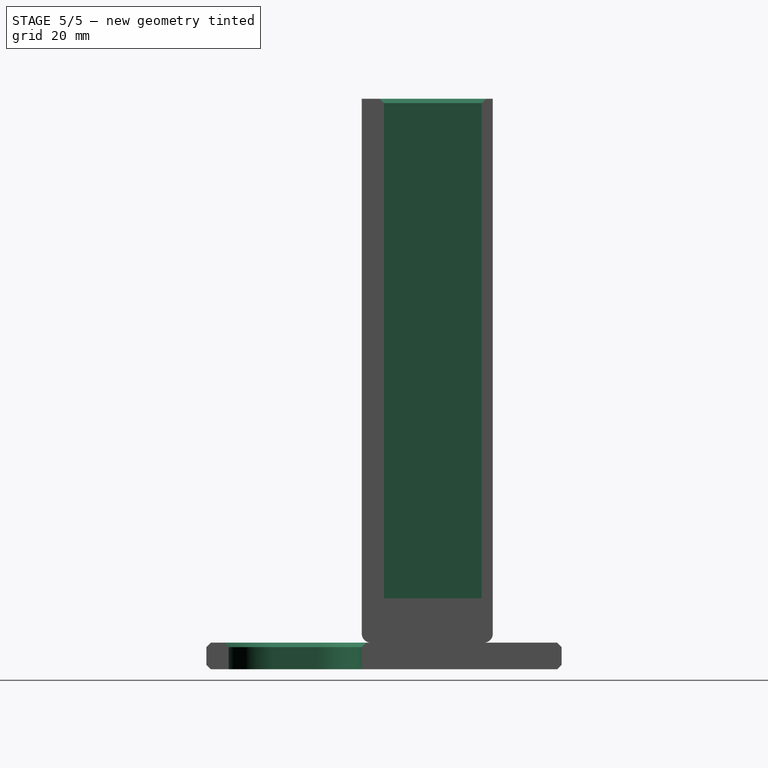
[diagram: stage 5 of 5 — right view after this stage's code; geometry added in this stage tinted green]
FEATURE [PartDesign::Body] Body
  Group = -> [Sketch,Pad,Fillet,Sketch007,Pocket,Chamfer]
  Origin = -> Origin001
  Tip = -> Chamfer
FEATURE [PartDesign::FeatureBase] Clone
  BaseFeature = -> Body
FEATURE [Part::Mirroring] Part__Mirroring  label="Clone (Mirror #1)"
  Base = (0,0,0)
  Normal = (1,0,0)
  Source = -> Clone
FEATURE [PartDesign::Body] Body001
  Group = -> [Sketch002,Pad001,Sketch003,Pocket001,Sketch004,Sketch005,Pocket002,Pocket003,Pocket004,Sketch006,Pocket005,LinearPattern,Fillet001,Sketch008,Pocket006,Sketch009,Pocket007,Chamfer001,Fillet002]
  Origin = -> Origin002
  Tip = -> Fillet002
FEATURE [PartDesign::FeatureBase] Clone001
  BaseFeature = -> Body001
FEATURE [Part::Mirroring] Part__Mirroring001  label="Clone001 (Mirror #2)"
  Base = (0,0,0)
  Normal = (1,0,0)
  Source = -> Clone001
FEATURE [App::Part] Part001  label="NUC_Mount_Top"
  Group = -> [Body001,Clone001,Part__Mirroring001]
  Origin = -> Origin003
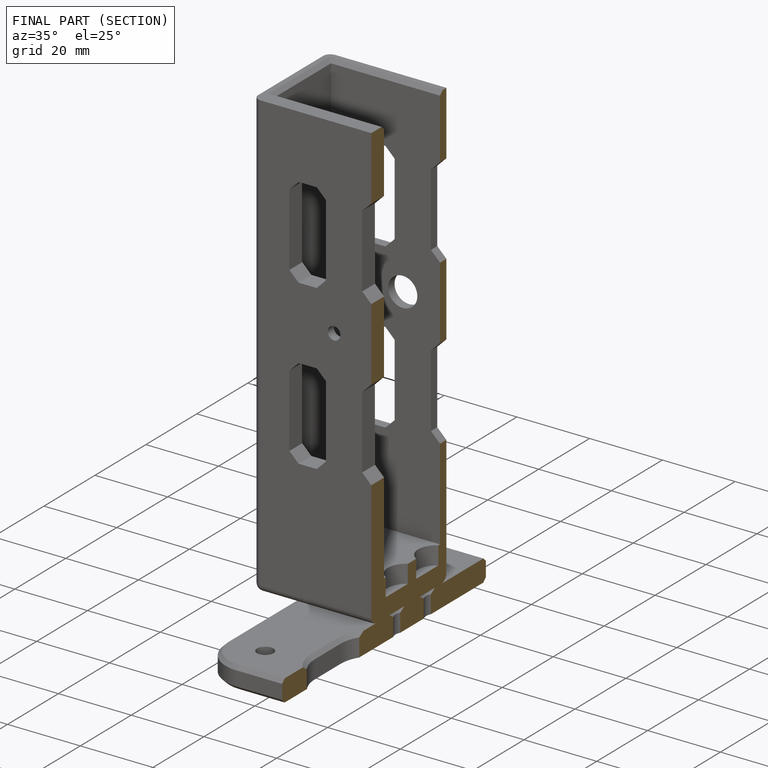
[diagram: finished part — half-section view (interior)]
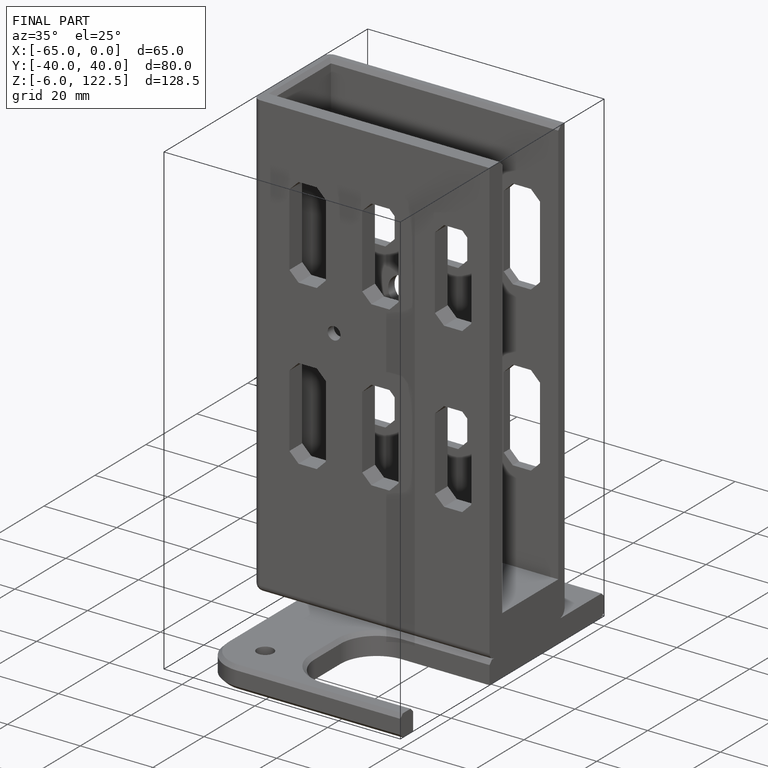
[diagram: finished part — iso view with bounding-box wireframe]
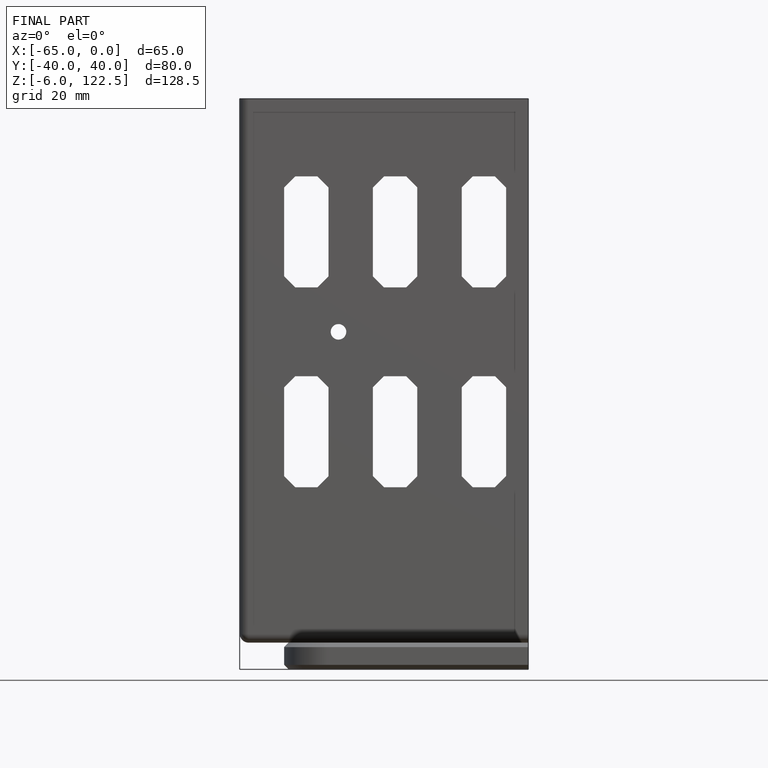
[diagram: finished part — front view with bounding-box wireframe]
